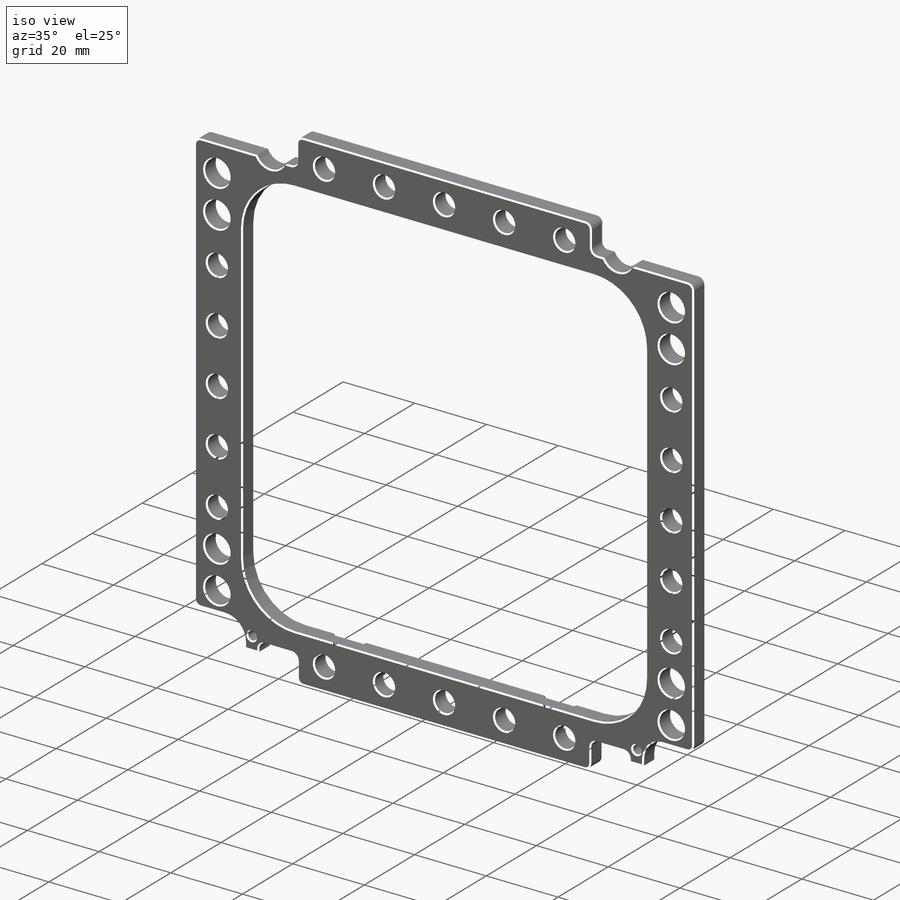
[diagram: iso view]
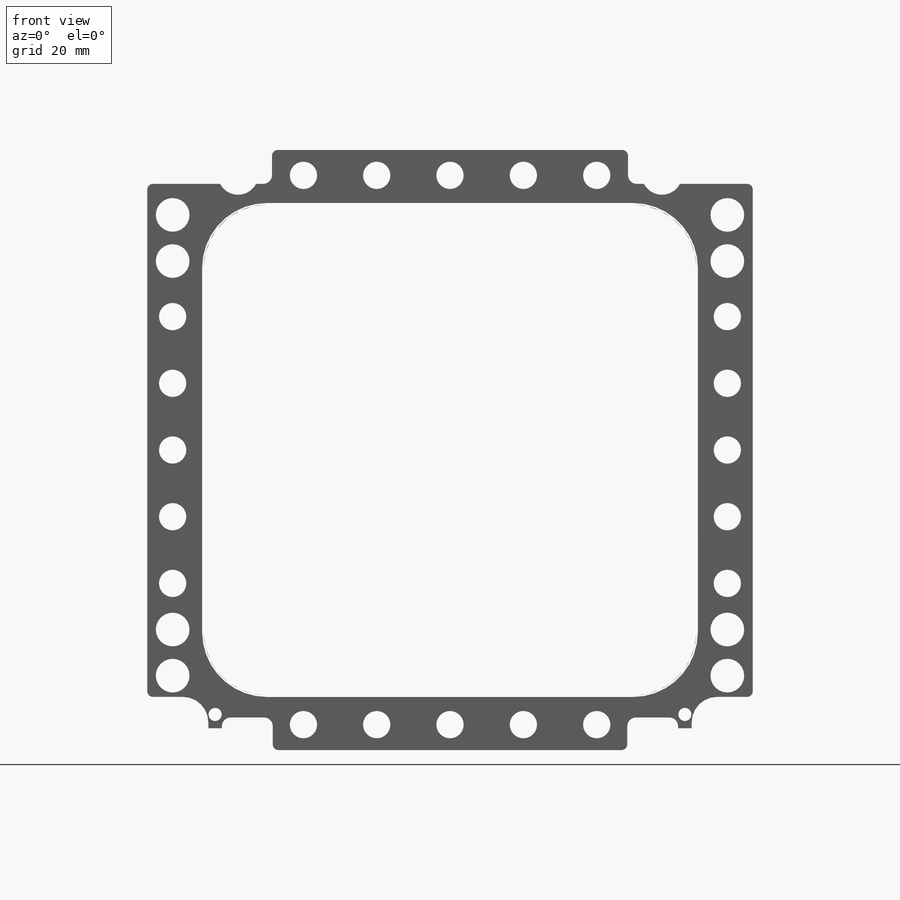
[diagram: front view]
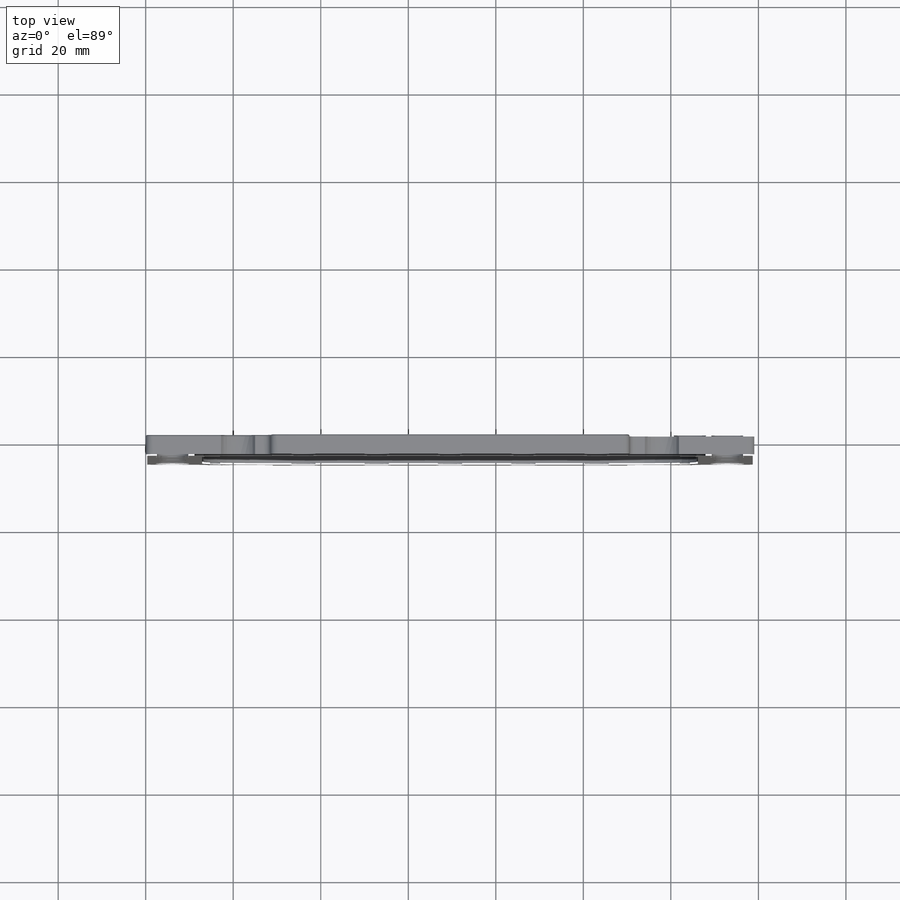
[diagram: top view]
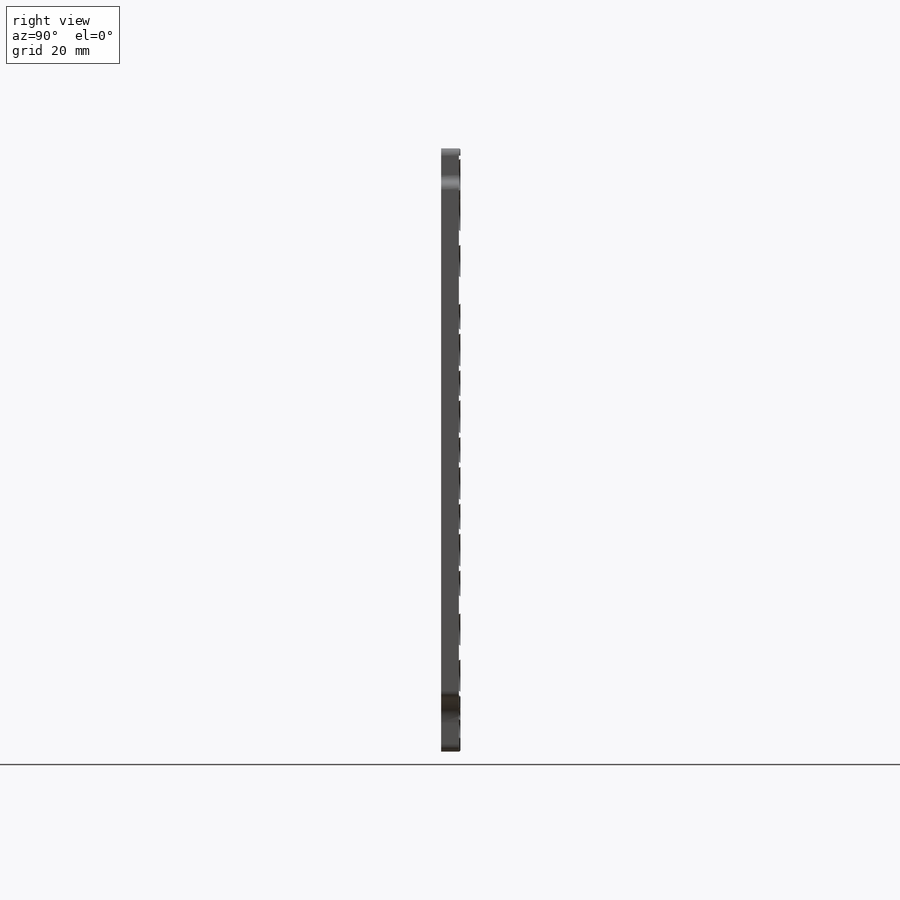
[diagram: right view]
SOLIDWORKS PART (.sldprt)
format: sldprt  version: not decoded by parser v0  size: 1,695,744 bytes
history: native  units: mm
features: sketch x6, fillet x6, cut_extrude x5, material x1, extrude x1 (+16 scaffold rows collapsed)
feature tree (35):
  scaffold x16  (default folders/planes/origin — collapsed)
  material  "Acrylic (Medium-high impact)"
  sketch  "Sketch1"  dims[c1.D11=10.922mm c1.D1=139.065mm c1.D2=137.8331mm c1.D3=112.5728mm c1.D4=112.1664mm c1.D6=112.5728mm c1.D5=82.042mm c2.D6=5.08mm c2.D1=5.08mm c2.D2=82.042mm c2.D3=21.1074mm c2.D5=5.9817mm c3.D6=139.065mm c3.D7=137.8331mm c3.D8=112.1664mm c3.D9=111.1504mm c3.D10=117.9322mm c3.D12=5.3848mm c3.D13=81.7118mm c3.D5=5.08mm c3.D4=5.9817mm c4.D9=117.9322mm c4.D14=2.4638mm c4.D15=3.81mm]
  extrude  "Extrude1"  Depth=4.7498mm
  fillet  "Fillet1"  Radius=14.478mm
  fillet  "Fillet2"  Radius=1.651mm
  fillet  "Fillet3"  Radius=1.651mm
  sketch  "Sketch2"  dims[D2=5.5372mm D4=6.9977mm D8=6.9977mm D5=10.541mm D6=10.541mm D7=12.7mm D1=6.1595mm D3=6.1595mm]
  cut_extrude  "Extrude2"  [1 undecoded]
  sketch  "Sketch3"  dims[D2=2.286mm D1=3.5052mm]
  cut_extrude  "Extrude3"  [1 undecoded]
  sketch  "Sketch4"  dims[c1.D1=7.1374mm c1.D2=14.7193mm c1.D3=~14.925651mm c2.D3=90.0deg c3.D3=5.461mm]
  cut_extrude  "Extrude4"  Depth=4.064mm
  sketch  "Sketch5"
  cut_extrude  "Extrude5"  Depth=1.1049mm
  sketch  "Sketch6"
  cut_extrude  "Extrude6"  Depth=1.1049mm
  fillet  "Fillet4"  Radius=0.396875mm
  fillet  "Fillet5"  Radius=0.352778mm
  fillet  "Fillet6"  Radius=0.352778mm
decode coverage: 14 of 18 modeling features carry decoded parameters
note: ~ marks probable driven/reference dimensions
note: 2 parameter values undecoded
note: suppression state not decoded; provenance and decode notes live in map.json
